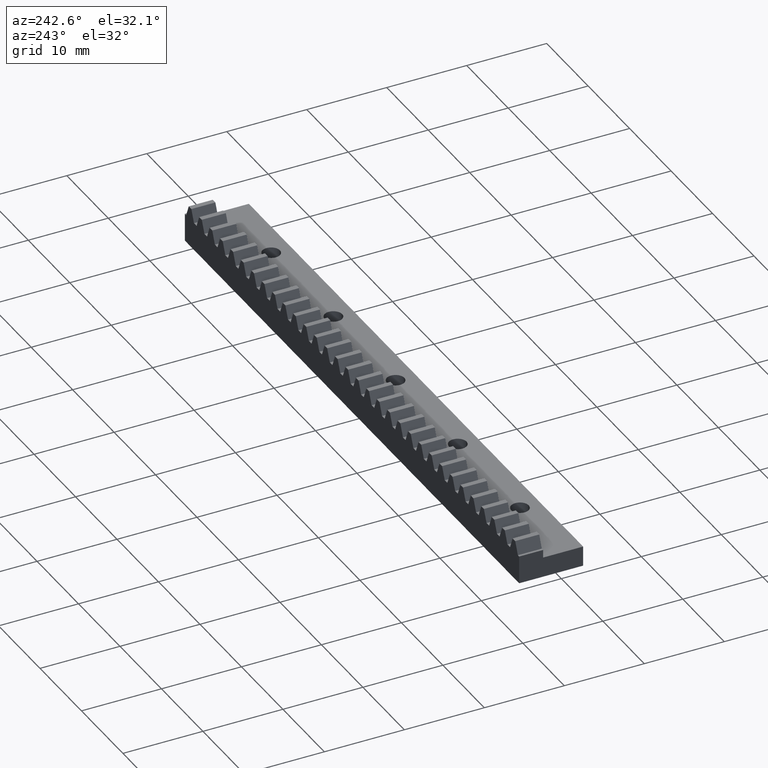
[diagram: clean part render]
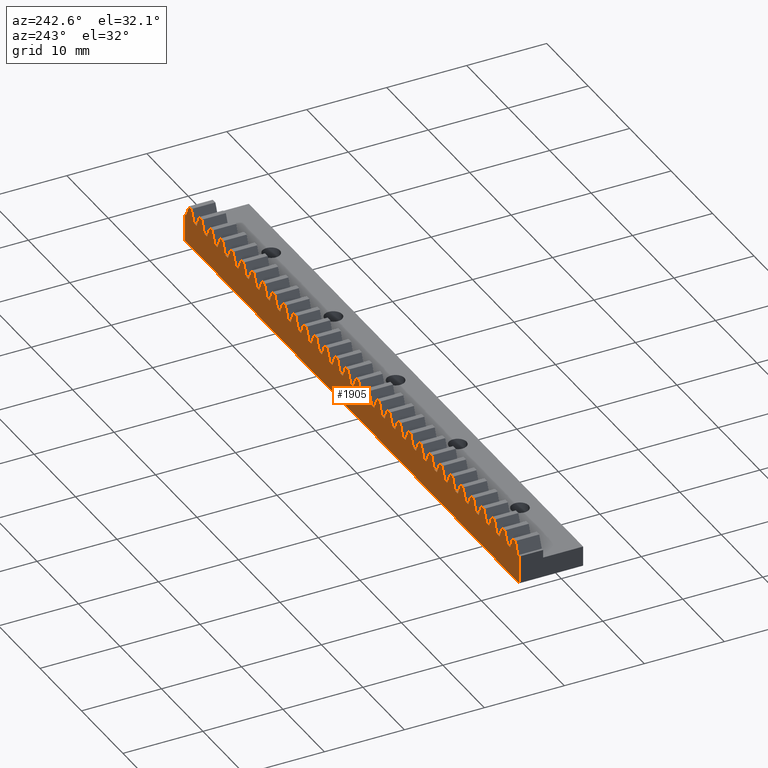
[diagram: same view with one face highlighted and labeled with its STEP entity id]
A machine part, auxiliary view. The second image highlights one B-rep face of the part: STEP entity #1905.
In plain terms, the highlighted face is a freeform B-spline surface patch.
Its self-contained STEP definition (entity closure, byte-faithful):
#974=CARTESIAN_POINT('',(-44.457968201094587,5.499999999999920,-0.249749990309030));
#975=CARTESIAN_POINT('',(44.237961643049822,5.499999999999920,-0.249749990309030));
#976=CARTESIAN_POINT('',(-44.457968201094587,5.499999999999920,5.249750124419480));
#977=CARTESIAN_POINT('',(44.237961643049822,5.499999999999920,5.249750124419480));
#978=B_SPLINE_SURFACE_WITH_KNOTS('',1,1,((#974,#976),(#975,#977)),.UNSPECIFIED.,.F.,.F.,.U.,(2,2),(2,2),(0.0,88.695929844144416),(0.0,5.499500114728511),.UNSPECIFIED.);
#979=CARTESIAN_POINT('',(-40.430000000000000,5.500000000000000,3.500000000000000));
#980=VERTEX_POINT('',#979);
#981=CARTESIAN_POINT('',(-40.430000000000000,5.500000000000000,0.0));
#982=VERTEX_POINT('',#981);
#983=CARTESIAN_POINT('',(-40.430000000000000,5.500000000000000,3.500000000000000));
#984=CARTESIAN_POINT('',(-40.430000000000000,5.500000000000000,0.0));
#985=QUASI_UNIFORM_CURVE('',1,(#983,#984),.UNSPECIFIED.,.F.,.U.);
#986=EDGE_CURVE('',#980,#982,#985,.T.);
#987=ORIENTED_EDGE('',*,*,#986,.F.);
#988=CARTESIAN_POINT('',(-40.114998000000000,5.500000000000000,3.500000000000000));
#989=VERTEX_POINT('',#988);
#990=CARTESIAN_POINT('',(-40.114998000000000,5.500000000000000,3.500000000000000));
#991=CARTESIAN_POINT('',(-40.430000000000000,5.500000000000000,3.500000000000000));
#992=QUASI_UNIFORM_CURVE('',1,(#990,#991),.UNSPECIFIED.,.F.,.U.);
#993=EDGE_CURVE('',#989,#980,#992,.T.);
#994=ORIENTED_EDGE('',*,*,#993,.F.);
#995=CARTESIAN_POINT('',(-39.484999999999999,5.500000000000000,5.0));
#996=VERTEX_POINT('',#995);
#997=CARTESIAN_POINT('',(-39.484999999999999,5.500000000000000,5.0));
#998=CARTESIAN_POINT('',(-40.114998000000000,5.500000000000000,3.500000000000000));
#999=QUASI_UNIFORM_CURVE('',1,(#997,#998),.UNSPECIFIED.,.F.,.U.);
#1000=EDGE_CURVE('',#996,#989,#999,.T.);
#1001=ORIENTED_EDGE('',*,*,#1000,.F.);
#1002=CARTESIAN_POINT('',(-38.855003000000053,5.500000000000000,5.0));
#1003=VERTEX_POINT('',#1002);
#1004=CARTESIAN_POINT('',(-38.855003000000053,5.500000000000000,5.0));
#1005=CARTESIAN_POINT('',(-39.484999999999999,5.500000000000000,5.0));
#1006=QUASI_UNIFORM_CURVE('',1,(#1004,#1005),.UNSPECIFIED.,.F.,.U.);
#1007=EDGE_CURVE('',#1003,#996,#1006,.T.);
#1008=ORIENTED_EDGE('',*,*,#1007,.F.);
#1009=CARTESIAN_POINT('',(-38.225006000000000,5.500000000000000,3.500000000000000));
#1010=VERTEX_POINT('',#1009);
#1011=CARTESIAN_POINT('',(-38.225006000000000,5.500000000000000,3.500000000000000));
#1012=CARTESIAN_POINT('',(-38.855003000000053,5.500000000000000,5.0));
#1013=QUASI_UNIFORM_CURVE('',1,(#1011,#1012),.UNSPECIFIED.,.F.,.U.);
#1014=EDGE_CURVE('',#1010,#1003,#1013,.T.);
#1015=ORIENTED_EDGE('',*,*,#1014,.F.);
#1016=CARTESIAN_POINT('',(-37.595005639991257,5.500000000000000,3.500000000000000));
#1017=VERTEX_POINT('',#1016);
#1018=CARTESIAN_POINT('',(-37.595005639991257,5.500000000000000,3.500000000000000));
#1019=CARTESIAN_POINT('',(-38.225006000000000,5.500000000000000,3.500000000000000));
#1020=QUASI_UNIFORM_CURVE('',1,(#1018,#1019),.UNSPECIFIED.,.F.,.U.);
#1021=EDGE_CURVE('',#1017,#1010,#1020,.T.);
#1022=ORIENTED_EDGE('',*,*,#1021,.F.);
#1023=CARTESIAN_POINT('',(-36.965004000000000,5.500000000000000,5.0));
#1024=VERTEX_POINT('',#1023);
#1025=CARTESIAN_POINT('',(-36.965004000000000,5.500000000000000,5.0));
#1026=CARTESIAN_POINT('',(-37.595005639991257,5.500000000000000,3.500000000000000));
#1027=QUASI_UNIFORM_CURVE('',1,(#1025,#1026),.UNSPECIFIED.,.F.,.U.);
#1028=EDGE_CURVE('',#1024,#1017,#1027,.T.);
#1029=ORIENTED_EDGE('',*,*,#1028,.F.);
#1030=CARTESIAN_POINT('',(-36.334999000000053,5.500000000000000,4.999991999999910));
#1031=VERTEX_POINT('',#1030);
#1032=CARTESIAN_POINT('',(-36.334999000000053,5.500000000000000,4.999991999999910));
#1033=CARTESIAN_POINT('',(-36.965004000000000,5.500000000000000,5.0));
#1034=QUASI_UNIFORM_CURVE('',1,(#1032,#1033),.UNSPECIFIED.,.F.,.U.);
#1035=EDGE_CURVE('',#1031,#1024,#1034,.T.);
#1036=ORIENTED_EDGE('',*,*,#1035,.F.);
#1037=CARTESIAN_POINT('',(-35.705002000000000,5.500000000000000,3.500000000000000));
#1038=VERTEX_POINT('',#1037);
#1039=CARTESIAN_POINT('',(-35.705002000000000,5.500000000000000,3.500000000000000));
#1040=CARTESIAN_POINT('',(-36.334999000000053,5.500000000000000,4.999991999999910));
#1041=QUASI_UNIFORM_CURVE('',1,(#1039,#1040),.UNSPECIFIED.,.F.,.U.);
#1042=EDGE_CURVE('',#1038,#1031,#1041,.T.);
#1043=ORIENTED_EDGE('',*,*,#1042,.F.);
#1044=CARTESIAN_POINT('',(-35.075004000000000,5.500000000000000,3.499992000000000));
#1045=VERTEX_POINT('',#1044);
#1046=CARTESIAN_POINT('',(-35.075004000000000,5.500000000000000,3.499992000000000));
#1047=CARTESIAN_POINT('',(-35.705002000000000,5.500000000000000,3.500000000000000));
#1048=QUASI_UNIFORM_CURVE('',1,(#1046,#1047),.UNSPECIFIED.,.F.,.U.);
#1049=EDGE_CURVE('',#1045,#1038,#1048,.T.);
#1050=ORIENTED_EDGE('',*,*,#1049,.F.);
#1051=CARTESIAN_POINT('',(-34.445000000000000,5.500000000000000,5.0));
#1052=VERTEX_POINT('',#1051);
#1053=CARTESIAN_POINT('',(-34.445000000000000,5.500000000000000,5.0));
#1054=CARTESIAN_POINT('',(-35.075004000000000,5.500000000000000,3.499992000000000));
#1055=QUASI_UNIFORM_CURVE('',1,(#1053,#1054),.UNSPECIFIED.,.F.,.U.);
#1056=EDGE_CURVE('',#1052,#1045,#1055,.T.);
#1057=ORIENTED_EDGE('',*,*,#1056,.F.);
#1058=CARTESIAN_POINT('',(-33.815002000000000,5.500000000000000,5.0));
#1059=VERTEX_POINT('',#1058);
#1060=CARTESIAN_POINT('',(-33.815002000000000,5.500000000000000,5.0));
#1061=CARTESIAN_POINT('',(-34.445000000000000,5.500000000000000,5.0));
#1062=QUASI_UNIFORM_CURVE('',1,(#1060,#1061),.UNSPECIFIED.,.F.,.U.);
#1063=EDGE_CURVE('',#1059,#1052,#1062,.T.);
#1064=ORIENTED_EDGE('',*,*,#1063,.F.);
#1065=CARTESIAN_POINT('',(-33.185004999999997,5.500000000000000,3.500000000000000));
#1066=VERTEX_POINT('',#1065);
#1067=CARTESIAN_POINT('',(-33.185004999999997,5.500000000000000,3.500000000000000));
#1068=CARTESIAN_POINT('',(-33.815002000000000,5.500000000000000,5.0));
#1069=QUASI_UNIFORM_CURVE('',1,(#1067,#1068),.UNSPECIFIED.,.F.,.U.);
#1070=EDGE_CURVE('',#1066,#1059,#1069,.T.);
#1071=ORIENTED_EDGE('',*,*,#1070,.F.);
#1072=CARTESIAN_POINT('',(-32.555000000000000,5.500000000000000,3.500000000000000));
#1073=VERTEX_POINT('',#1072);
#1074=CARTESIAN_POINT('',(-32.555000000000000,5.500000000000000,3.500000000000000));
#1075=CARTESIAN_POINT('',(-33.185004999999997,5.500000000000000,3.500000000000000));
#1076=QUASI_UNIFORM_CURVE('',1,(#1074,#1075),.UNSPECIFIED.,.F.,.U.);
#1077=EDGE_CURVE('',#1073,#1066,#1076,.T.);
#1078=ORIENTED_EDGE('',*,*,#1077,.F.);
#1079=CARTESIAN_POINT('',(-31.925003000000000,5.500000000000000,5.0));
#1080=VERTEX_POINT('',#1079);
#1081=CARTESIAN_POINT('',(-31.925003000000000,5.500000000000000,5.0));
#1082=CARTESIAN_POINT('',(-32.555000000000000,5.500000000000000,3.500000000000000));
#1083=QUASI_UNIFORM_CURVE('',1,(#1081,#1082),.UNSPECIFIED.,.F.,.U.);
#1084=EDGE_CURVE('',#1080,#1073,#1083,.T.);
#1085=ORIENTED_EDGE('',*,*,#1084,.F.);
#1086=CARTESIAN_POINT('',(-31.295001360001951,5.500000000000000,5.0));
#1087=VERTEX_POINT('',#1086);
#1088=CARTESIAN_POINT('',(-31.295001360001951,5.500000000000000,5.0));
#1089=CARTESIAN_POINT('',(-31.925003000000000,5.500000000000000,5.0));
#1090=QUASI_UNIFORM_CURVE('',1,(#1088,#1089),.UNSPECIFIED.,.F.,.U.);
#1091=EDGE_CURVE('',#1087,#1080,#1090,.T.);
#1092=ORIENTED_EDGE('',*,*,#1091,.F.);
#1093=CARTESIAN_POINT('',(-30.665001000000000,5.500000000000000,3.500000000000000));
#1094=VERTEX_POINT('',#1093);
#1095=CARTESIAN_POINT('',(-30.665001000000000,5.500000000000000,3.500000000000000));
#1096=CARTESIAN_POINT('',(-31.295001360001951,5.500000000000000,5.0));
#1097=QUASI_UNIFORM_CURVE('',1,(#1095,#1096),.UNSPECIFIED.,.F.,.U.);
#1098=EDGE_CURVE('',#1094,#1087,#1097,.T.);
#1099=ORIENTED_EDGE('',*,*,#1098,.F.);
#1100=CARTESIAN_POINT('',(-30.035003000000000,5.500000000000000,3.500000000000000));
#1101=VERTEX_POINT('',#1100);
#1102=CARTESIAN_POINT('',(-30.035003000000000,5.500000000000000,3.500000000000000));
#1103=CARTESIAN_POINT('',(-30.665001000000000,5.500000000000000,3.500000000000000));
#1104=QUASI_UNIFORM_CURVE('',1,(#1102,#1103),.UNSPECIFIED.,.F.,.U.);
#1105=EDGE_CURVE('',#1101,#1094,#1104,.T.);
#1106=ORIENTED_EDGE('',*,*,#1105,.F.);
#1107=CARTESIAN_POINT('',(-29.404999000000000,5.500000000000000,5.0));
#1108=VERTEX_POINT('',#1107);
#1109=CARTESIAN_POINT('',(-29.404999000000000,5.500000000000000,5.0));
#1110=CARTESIAN_POINT('',(-30.035003000000000,5.500000000000000,3.500000000000000));
#1111=QUASI_UNIFORM_CURVE('',1,(#1109,#1110),.UNSPECIFIED.,.F.,.U.);
#1112=EDGE_CURVE('',#1108,#1101,#1111,.T.);
#1113=ORIENTED_EDGE('',*,*,#1112,.F.);
#1114=CARTESIAN_POINT('',(-28.775001000000000,5.500000000000000,5.0));
#1115=VERTEX_POINT('',#1114);
#1116=CARTESIAN_POINT('',(-28.775001000000000,5.500000000000000,5.0));
#1117=CARTESIAN_POINT('',(-29.404999000000000,5.500000000000000,5.0));
#1118=QUASI_UNIFORM_CURVE('',1,(#1116,#1117),.UNSPECIFIED.,.F.,.U.);
#1119=EDGE_CURVE('',#1115,#1108,#1118,.T.);
#1120=ORIENTED_EDGE('',*,*,#1119,.F.);
#1121=CARTESIAN_POINT('',(-28.145004000000000,5.500000000000000,3.500000000000000));
#1122=VERTEX_POINT('',#1121);
#1123=CARTESIAN_POINT('',(-28.145004000000000,5.500000000000000,3.500000000000000));
#1124=CARTESIAN_POINT('',(-28.775001000000000,5.500000000000000,5.0));
#1125=QUASI_UNIFORM_CURVE('',1,(#1123,#1124),.UNSPECIFIED.,.F.,.U.);
#1126=EDGE_CURVE('',#1122,#1115,#1125,.T.);
#1127=ORIENTED_EDGE('',*,*,#1126,.F.);
#1128=CARTESIAN_POINT('',(-27.515003639991249,5.500000000000000,3.500000000000000));
#1129=VERTEX_POINT('',#1128);
#1130=CARTESIAN_POINT('',(-27.515003639991249,5.500000000000000,3.500000000000000));
#1131=CARTESIAN_POINT('',(-28.145004000000000,5.500000000000000,3.500000000000000));
#1132=QUASI_UNIFORM_CURVE('',1,(#1130,#1131),.UNSPECIFIED.,.F.,.U.);
#1133=EDGE_CURVE('',#1129,#1122,#1132,.T.);
#1134=ORIENTED_EDGE('',*,*,#1133,.F.);
#1135=CARTESIAN_POINT('',(-26.885002000000000,5.500000000000000,5.0));
#1136=VERTEX_POINT('',#1135);
#1137=CARTESIAN_POINT('',(-26.885002000000000,5.500000000000000,5.0));
#1138=CARTESIAN_POINT('',(-27.515003639991249,5.500000000000000,3.500000000000000));
#1139=QUASI_UNIFORM_CURVE('',1,(#1137,#1138),.UNSPECIFIED.,.F.,.U.);
#1140=EDGE_CURVE('',#1136,#1129,#1139,.T.);
#1141=ORIENTED_EDGE('',*,*,#1140,.F.);
#1142=CARTESIAN_POINT('',(-26.255005000000001,5.500000000000000,5.0));
#1143=VERTEX_POINT('',#1142);
#1144=CARTESIAN_POINT('',(-26.255005000000001,5.500000000000000,5.0));
#1145=CARTESIAN_POINT('',(-26.885002000000000,5.500000000000000,5.0));
#1146=QUASI_UNIFORM_CURVE('',1,(#1144,#1145),.UNSPECIFIED.,.F.,.U.);
#1147=EDGE_CURVE('',#1143,#1136,#1146,.T.);
#1148=ORIENTED_EDGE('',*,*,#1147,.F.);
#1149=CARTESIAN_POINT('',(-25.625000000000000,5.500000000000000,3.500000000000000));
#1150=VERTEX_POINT('',#1149);
#1151=CARTESIAN_POINT('',(-25.625000000000000,5.500000000000000,3.500000000000000));
#1152=CARTESIAN_POINT('',(-26.255005000000001,5.500000000000000,5.0));
#1153=QUASI_UNIFORM_CURVE('',1,(#1151,#1152),.UNSPECIFIED.,.F.,.U.);
#1154=EDGE_CURVE('',#1150,#1143,#1153,.T.);
#1155=ORIENTED_EDGE('',*,*,#1154,.F.);
#1156=CARTESIAN_POINT('',(-24.995003000000001,5.500000000000000,3.500000000000000));
#1157=VERTEX_POINT('',#1156);
#1158=CARTESIAN_POINT('',(-24.995003000000001,5.500000000000000,3.500000000000000));
#1159=CARTESIAN_POINT('',(-25.625000000000000,5.500000000000000,3.500000000000000));
#1160=QUASI_UNIFORM_CURVE('',1,(#1158,#1159),.UNSPECIFIED.,.F.,.U.);
#1161=EDGE_CURVE('',#1157,#1150,#1160,.T.);
#1162=ORIENTED_EDGE('',*,*,#1161,.F.);
#1163=CARTESIAN_POINT('',(-24.365005000000000,5.500000000000000,5.0));
#1164=VERTEX_POINT('',#1163);
#1165=CARTESIAN_POINT('',(-24.365005000000000,5.500000000000000,5.0));
#1166=CARTESIAN_POINT('',(-24.995003000000001,5.500000000000000,3.500000000000000));
#1167=QUASI_UNIFORM_CURVE('',1,(#1165,#1166),.UNSPECIFIED.,.F.,.U.);
#1168=EDGE_CURVE('',#1164,#1157,#1167,.T.);
#1169=ORIENTED_EDGE('',*,*,#1168,.F.);
#1170=CARTESIAN_POINT('',(-23.734999999999999,5.500000000000000,4.999991999999910));
#1171=VERTEX_POINT('',#1170);
#1172=CARTESIAN_POINT('',(-23.734999999999999,5.500000000000000,4.999991999999910));
#1173=CARTESIAN_POINT('',(-24.365005000000000,5.500000000000000,5.0));
#1174=QUASI_UNIFORM_CURVE('',1,(#1172,#1173),.UNSPECIFIED.,.F.,.U.);
#1175=EDGE_CURVE('',#1171,#1164,#1174,.T.);
#1176=ORIENTED_EDGE('',*,*,#1175,.F.);
#1177=CARTESIAN_POINT('',(-23.105003000000000,5.500000000000000,3.500000000000000));
#1178=VERTEX_POINT('',#1177);
#1179=CARTESIAN_POINT('',(-23.105003000000000,5.500000000000000,3.500000000000000));
#1180=CARTESIAN_POINT('',(-23.734999999999999,5.500000000000000,4.999991999999910));
#1181=QUASI_UNIFORM_CURVE('',1,(#1179,#1180),.UNSPECIFIED.,.F.,.U.);
#1182=EDGE_CURVE('',#1178,#1171,#1181,.T.);
#1183=ORIENTED_EDGE('',*,*,#1182,.F.);
#1184=CARTESIAN_POINT('',(-22.475006000000000,5.500000000000000,3.500000000000000));
#1185=VERTEX_POINT('',#1184);
#1186=CARTESIAN_POINT('',(-22.475006000000000,5.500000000000000,3.500000000000000));
#1187=CARTESIAN_POINT('',(-23.105003000000000,5.500000000000000,3.500000000000000));
#1188=QUASI_UNIFORM_CURVE('',1,(#1186,#1187),.UNSPECIFIED.,.F.,.U.);
#1189=EDGE_CURVE('',#1185,#1178,#1188,.T.);
#1190=ORIENTED_EDGE('',*,*,#1189,.F.);
#1191=CARTESIAN_POINT('',(-21.845005639998050,5.500000000000000,5.0));
#1192=VERTEX_POINT('',#1191);
#1193=CARTESIAN_POINT('',(-21.845005639998050,5.500000000000000,5.0));
#1194=CARTESIAN_POINT('',(-22.475006000000000,5.500000000000000,3.500000000000000));
#1195=QUASI_UNIFORM_CURVE('',1,(#1193,#1194),.UNSPECIFIED.,.F.,.U.);
#1196=EDGE_CURVE('',#1192,#1185,#1195,.T.);
#1197=ORIENTED_EDGE('',*,*,#1196,.F.);
#1198=CARTESIAN_POINT('',(-21.215004000000000,5.500000000000000,5.0));
#1199=VERTEX_POINT('',#1198);
#1200=CARTESIAN_POINT('',(-21.215004000000000,5.500000000000000,5.0));
#1201=CARTESIAN_POINT('',(-21.845005639998050,5.500000000000000,5.0));
#1202=QUASI_UNIFORM_CURVE('',1,(#1200,#1201),.UNSPECIFIED.,.F.,.U.);
#1203=EDGE_CURVE('',#1199,#1192,#1202,.T.);
#1204=ORIENTED_EDGE('',*,*,#1203,.F.);
#1205=CARTESIAN_POINT('',(-20.584999000000000,5.500000000000000,3.500000000000000));
#1206=VERTEX_POINT('',#1205);
#1207=CARTESIAN_POINT('',(-20.584999000000000,5.500000000000000,3.500000000000000));
#1208=CARTESIAN_POINT('',(-21.215004000000000,5.500000000000000,5.0));
#1209=QUASI_UNIFORM_CURVE('',1,(#1207,#1208),.UNSPECIFIED.,.F.,.U.);
#1210=EDGE_CURVE('',#1206,#1199,#1209,.T.);
#1211=ORIENTED_EDGE('',*,*,#1210,.F.);
#1212=CARTESIAN_POINT('',(-19.955002000000000,5.500000000000000,3.500000000000000));
#1213=VERTEX_POINT('',#1212);
#1214=CARTESIAN_POINT('',(-19.955002000000000,5.500000000000000,3.500000000000000));
#1215=CARTESIAN_POINT('',(-20.584999000000000,5.500000000000000,3.500000000000000));
#1216=QUASI_UNIFORM_CURVE('',1,(#1214,#1215),.UNSPECIFIED.,.F.,.U.);
#1217=EDGE_CURVE('',#1213,#1206,#1216,.T.);
#1218=ORIENTED_EDGE('',*,*,#1217,.F.);
#1219=CARTESIAN_POINT('',(-19.325004000000000,5.500000000000000,5.0));
#1220=VERTEX_POINT('',#1219);
#1221=CARTESIAN_POINT('',(-19.325004000000000,5.500000000000000,5.0));
#1222=CARTESIAN_POINT('',(-19.955002000000000,5.500000000000000,3.500000000000000));
#1223=QUASI_UNIFORM_CURVE('',1,(#1221,#1222),.UNSPECIFIED.,.F.,.U.);
#1224=EDGE_CURVE('',#1220,#1213,#1223,.T.);
#1225=ORIENTED_EDGE('',*,*,#1224,.F.);
#1226=CARTESIAN_POINT('',(-18.695000000000000,5.500000000000000,4.999991999999910));
#1227=VERTEX_POINT('',#1226);
#1228=CARTESIAN_POINT('',(-18.695000000000000,5.500000000000000,4.999991999999910));
#1229=CARTESIAN_POINT('',(-19.325004000000000,5.500000000000000,5.0));
#1230=QUASI_UNIFORM_CURVE('',1,(#1228,#1229),.UNSPECIFIED.,.F.,.U.);
#1231=EDGE_CURVE('',#1227,#1220,#1230,.T.);
#1232=ORIENTED_EDGE('',*,*,#1231,.F.);
#1233=CARTESIAN_POINT('',(-18.065002000000000,5.500000000000000,3.500000000000000));
#1234=VERTEX_POINT('',#1233);
#1235=CARTESIAN_POINT('',(-18.065002000000000,5.500000000000000,3.500000000000000));
#1236=CARTESIAN_POINT('',(-18.695000000000000,5.500000000000000,4.999991999999910));
#1237=QUASI_UNIFORM_CURVE('',1,(#1235,#1236),.UNSPECIFIED.,.F.,.U.);
#1238=EDGE_CURVE('',#1234,#1227,#1237,.T.);
#1239=ORIENTED_EDGE('',*,*,#1238,.F.);
#1240=CARTESIAN_POINT('',(-17.435005000000000,5.500000000000000,3.499992000000000));
#1241=VERTEX_POINT('',#1240);
#1242=CARTESIAN_POINT('',(-17.435005000000000,5.500000000000000,3.499992000000000));
#1243=CARTESIAN_POINT('',(-18.065002000000000,5.500000000000000,3.500000000000000));
#1244=QUASI_UNIFORM_CURVE('',1,(#1242,#1243),.UNSPECIFIED.,.F.,.U.);
#1245=EDGE_CURVE('',#1241,#1234,#1244,.T.);
#1246=ORIENTED_EDGE('',*,*,#1245,.F.);
#1247=CARTESIAN_POINT('',(-16.805000000000000,5.500000000000000,5.0));
#1248=VERTEX_POINT('',#1247);
#1249=CARTESIAN_POINT('',(-16.805000000000000,5.500000000000000,5.0));
#1250=CARTESIAN_POINT('',(-17.435005000000000,5.500000000000000,3.499992000000000));
#1251=QUASI_UNIFORM_CURVE('',1,(#1249,#1250),.UNSPECIFIED.,.F.,.U.);
#1252=EDGE_CURVE('',#1248,#1241,#1251,.T.);
#1253=ORIENTED_EDGE('',*,*,#1252,.F.);
#1254=CARTESIAN_POINT('',(-16.175003000000000,5.500000000000000,5.0));
#1255=VERTEX_POINT('',#1254);
#1256=CARTESIAN_POINT('',(-16.175003000000000,5.500000000000000,5.0));
#1257=CARTESIAN_POINT('',(-16.805000000000000,5.500000000000000,5.0));
#1258=QUASI_UNIFORM_CURVE('',1,(#1256,#1257),.UNSPECIFIED.,.F.,.U.);
#1259=EDGE_CURVE('',#1255,#1248,#1258,.T.);
#1260=ORIENTED_EDGE('',*,*,#1259,.F.);
#1261=CARTESIAN_POINT('',(-15.545006000000001,5.500000000000000,3.500000000000000));
#1262=VERTEX_POINT('',#1261);
#1263=CARTESIAN_POINT('',(-15.545006000000001,5.500000000000000,3.500000000000000));
#1264=CARTESIAN_POINT('',(-16.175003000000000,5.500000000000000,5.0));
#1265=QUASI_UNIFORM_CURVE('',1,(#1263,#1264),.UNSPECIFIED.,.F.,.U.);
#1266=EDGE_CURVE('',#1262,#1255,#1265,.T.);
#1267=ORIENTED_EDGE('',*,*,#1266,.F.);
#1268=CARTESIAN_POINT('',(-14.915001000000000,5.500000000000000,3.500000000000000));
#1269=VERTEX_POINT('',#1268);
#1270=CARTESIAN_POINT('',(-14.915001000000000,5.500000000000000,3.500000000000000));
#1271=CARTESIAN_POINT('',(-15.545006000000001,5.500000000000000,3.500000000000000));
#1272=QUASI_UNIFORM_CURVE('',1,(#1270,#1271),.UNSPECIFIED.,.F.,.U.);
#1273=EDGE_CURVE('',#1269,#1262,#1272,.T.);
#1274=ORIENTED_EDGE('',*,*,#1273,.F.);
#1275=CARTESIAN_POINT('',(-14.285003000000000,5.500000000000000,5.0));
#1276=VERTEX_POINT('',#1275);
#1277=CARTESIAN_POINT('',(-14.285003000000000,5.500000000000000,5.0));
#1278=CARTESIAN_POINT('',(-14.915001000000000,5.500000000000000,3.500000000000000));
#1279=QUASI_UNIFORM_CURVE('',1,(#1277,#1278),.UNSPECIFIED.,.F.,.U.);
#1280=EDGE_CURVE('',#1276,#1269,#1279,.T.);
#1281=ORIENTED_EDGE('',*,*,#1280,.F.);
#1282=CARTESIAN_POINT('',(-13.654999000000000,5.500000000000000,4.999991999999910));
#1283=VERTEX_POINT('',#1282);
#1284=CARTESIAN_POINT('',(-13.654999000000000,5.500000000000000,4.999991999999910));
#1285=CARTESIAN_POINT('',(-14.285003000000000,5.500000000000000,5.0));
#1286=QUASI_UNIFORM_CURVE('',1,(#1284,#1285),.UNSPECIFIED.,.F.,.U.);
#1287=EDGE_CURVE('',#1283,#1276,#1286,.T.);
#1288=ORIENTED_EDGE('',*,*,#1287,.F.);
#1289=CARTESIAN_POINT('',(-13.025001000000000,5.500000000000000,3.500000000000000));
#1290=VERTEX_POINT('',#1289);
#1291=CARTESIAN_POINT('',(-13.025001000000000,5.500000000000000,3.500000000000000));
#1292=CARTESIAN_POINT('',(-13.654999000000000,5.500000000000000,4.999991999999910));
#1293=QUASI_UNIFORM_CURVE('',1,(#1291,#1292),.UNSPECIFIED.,.F.,.U.);
#1294=EDGE_CURVE('',#1290,#1283,#1293,.T.);
#1295=ORIENTED_EDGE('',*,*,#1294,.F.);
#1296=CARTESIAN_POINT('',(-12.394996000000100,5.500000000000000,3.500000000000000));
#1297=VERTEX_POINT('',#1296);
#1298=CARTESIAN_POINT('',(-12.394996000000100,5.500000000000000,3.500000000000000));
#1299=CARTESIAN_POINT('',(-13.025001000000000,5.500000000000000,3.500000000000000));
#1300=QUASI_UNIFORM_CURVE('',1,(#1298,#1299),.UNSPECIFIED.,.F.,.U.);
#1301=EDGE_CURVE('',#1297,#1290,#1300,.T.);
#1302=ORIENTED_EDGE('',*,*,#1301,.F.);
#1303=CARTESIAN_POINT('',(-11.764999000000000,5.500000000000000,5.0));
#1304=VERTEX_POINT('',#1303);
#1305=CARTESIAN_POINT('',(-11.764999000000000,5.500000000000000,5.0));
#1306=CARTESIAN_POINT('',(-12.394996000000100,5.500000000000000,3.500000000000000));
#1307=QUASI_UNIFORM_CURVE('',1,(#1305,#1306),.UNSPECIFIED.,.F.,.U.);
#1308=EDGE_CURVE('',#1304,#1297,#1307,.T.);
#1309=ORIENTED_EDGE('',*,*,#1308,.F.);
#1310=CARTESIAN_POINT('',(-11.135002000000100,5.500000000000000,5.0));
#1311=VERTEX_POINT('',#1310);
#1312=CARTESIAN_POINT('',(-11.135002000000100,5.500000000000000,5.0));
#1313=CARTESIAN_POINT('',(-11.764999000000000,5.500000000000000,5.0));
#1314=QUASI_UNIFORM_CURVE('',1,(#1312,#1313),.UNSPECIFIED.,.F.,.U.);
#1315=EDGE_CURVE('',#1311,#1304,#1314,.T.);
#1316=ORIENTED_EDGE('',*,*,#1315,.F.);
#1317=CARTESIAN_POINT('',(-10.505005000000001,5.500000000000000,3.500000000000000));
#1318=VERTEX_POINT('',#1317);
#1319=CARTESIAN_POINT('',(-10.505005000000001,5.500000000000000,3.500000000000000));
#1320=CARTESIAN_POINT('',(-11.135002000000100,5.500000000000000,5.0));
#1321=QUASI_UNIFORM_CURVE('',1,(#1319,#1320),.UNSPECIFIED.,.F.,.U.);
#1322=EDGE_CURVE('',#1318,#1311,#1321,.T.);
#1323=ORIENTED_EDGE('',*,*,#1322,.F.);
#1324=CARTESIAN_POINT('',(-9.875003639996701,5.500000000000000,3.500000000000000));
#1325=VERTEX_POINT('',#1324);
#1326=CARTESIAN_POINT('',(-9.875003639996701,5.500000000000000,3.500000000000000));
#1327=CARTESIAN_POINT('',(-10.505005000000001,5.500000000000000,3.500000000000000));
#1328=QUASI_UNIFORM_CURVE('',1,(#1326,#1327),.UNSPECIFIED.,.F.,.U.);
#1329=EDGE_CURVE('',#1325,#1318,#1328,.T.);
#1330=ORIENTED_EDGE('',*,*,#1329,.F.);
#1331=CARTESIAN_POINT('',(-9.245003000000001,5.500000000000000,5.0));
#1332=VERTEX_POINT('',#1331);
#1333=CARTESIAN_POINT('',(-9.245003000000001,5.500000000000000,5.0));
#1334=CARTESIAN_POINT('',(-9.875003639996701,5.500000000000000,3.500000000000000));
#1335=QUASI_UNIFORM_CURVE('',1,(#1333,#1334),.UNSPECIFIED.,.F.,.U.);
#1336=EDGE_CURVE('',#1332,#1325,#1335,.T.);
#1337=ORIENTED_EDGE('',*,*,#1336,.F.);
#1338=CARTESIAN_POINT('',(-8.615005000000110,5.500000000000000,4.999991999999910));
#1339=VERTEX_POINT('',#1338);
#1340=CARTESIAN_POINT('',(-8.615005000000110,5.500000000000000,4.999991999999910));
#1341=CARTESIAN_POINT('',(-9.245003000000001,5.500000000000000,5.0));
#1342=QUASI_UNIFORM_CURVE('',1,(#1340,#1341),.UNSPECIFIED.,.F.,.U.);
#1343=EDGE_CURVE('',#1339,#1332,#1342,.T.);
#1344=ORIENTED_EDGE('',*,*,#1343,.F.);
#1345=CARTESIAN_POINT('',(-7.985000000000001,5.500000000000000,3.500000000000000));
#1346=VERTEX_POINT('',#1345);
#1347=CARTESIAN_POINT('',(-7.985000000000001,5.500000000000000,3.500000000000000));
#1348=CARTESIAN_POINT('',(-8.615005000000110,5.500000000000000,4.999991999999910));
#1349=QUASI_UNIFORM_CURVE('',1,(#1347,#1348),.UNSPECIFIED.,.F.,.U.);
#1350=EDGE_CURVE('',#1346,#1339,#1349,.T.);
#1351=ORIENTED_EDGE('',*,*,#1350,.F.);
#1352=CARTESIAN_POINT('',(-7.355003000000110,5.500000000000000,3.499992000000000));
#1353=VERTEX_POINT('',#1352);
#1354=CARTESIAN_POINT('',(-7.355003000000110,5.500000000000000,3.499992000000000));
#1355=CARTESIAN_POINT('',(-7.985000000000001,5.500000000000000,3.500000000000000));
#1356=QUASI_UNIFORM_CURVE('',1,(#1354,#1355),.UNSPECIFIED.,.F.,.U.);
#1357=EDGE_CURVE('',#1353,#1346,#1356,.T.);
#1358=ORIENTED_EDGE('',*,*,#1357,.F.);
#1359=CARTESIAN_POINT('',(-6.725006000000111,5.500000000000000,5.0));
#1360=VERTEX_POINT('',#1359);
#1361=CARTESIAN_POINT('',(-6.725006000000111,5.500000000000000,5.0));
#1362=CARTESIAN_POINT('',(-7.355003000000110,5.500000000000000,3.499992000000000));
#1363=QUASI_UNIFORM_CURVE('',1,(#1361,#1362),.UNSPECIFIED.,.F.,.U.);
#1364=EDGE_CURVE('',#1360,#1353,#1363,.T.);
#1365=ORIENTED_EDGE('',*,*,#1364,.F.);
#1366=CARTESIAN_POINT('',(-6.095001000000000,5.500000000000000,5.0));
#1367=VERTEX_POINT('',#1366);
#1368=CARTESIAN_POINT('',(-6.095001000000000,5.500000000000000,5.0));
#1369=CARTESIAN_POINT('',(-6.725006000000111,5.500000000000000,5.0));
#1370=QUASI_UNIFORM_CURVE('',1,(#1368,#1369),.UNSPECIFIED.,.F.,.U.);
#1371=EDGE_CURVE('',#1367,#1360,#1370,.T.);
#1372=ORIENTED_EDGE('',*,*,#1371,.F.);
#1373=CARTESIAN_POINT('',(-5.465004000000110,5.500000000000000,3.500000000000000));
#1374=VERTEX_POINT('',#1373);
#1375=CARTESIAN_POINT('',(-5.465004000000110,5.500000000000000,3.500000000000000));
#1376=CARTESIAN_POINT('',(-6.095001000000000,5.500000000000000,5.0));
#1377=QUASI_UNIFORM_CURVE('',1,(#1375,#1376),.UNSPECIFIED.,.F.,.U.);
#1378=EDGE_CURVE('',#1374,#1367,#1377,.T.);
#1379=ORIENTED_EDGE('',*,*,#1378,.F.);
#1380=CARTESIAN_POINT('',(-4.834999000000001,5.500000000000000,3.500000000000000));
#1381=VERTEX_POINT('',#1380);
#1382=CARTESIAN_POINT('',(-4.834999000000001,5.500000000000000,3.500000000000000));
#1383=CARTESIAN_POINT('',(-5.465004000000110,5.500000000000000,3.500000000000000));
#1384=QUASI_UNIFORM_CURVE('',1,(#1382,#1383),.UNSPECIFIED.,.F.,.U.);
#1385=EDGE_CURVE('',#1381,#1374,#1384,.T.);
#1386=ORIENTED_EDGE('',*,*,#1385,.F.);
#1387=CARTESIAN_POINT('',(-4.205002000000105,5.500000000000000,5.0));
#1388=VERTEX_POINT('',#1387);
#1389=CARTESIAN_POINT('',(-4.205002000000105,5.500000000000000,5.0));
#1390=CARTESIAN_POINT('',(-4.834999000000001,5.500000000000000,3.500000000000000));
#1391=QUASI_UNIFORM_CURVE('',1,(#1389,#1390),.UNSPECIFIED.,.F.,.U.);
#1392=EDGE_CURVE('',#1388,#1381,#1391,.T.);
#1393=ORIENTED_EDGE('',*,*,#1392,.F.);
#1394=CARTESIAN_POINT('',(-3.575004000000000,5.500000000000000,4.999991999999910));
#1395=VERTEX_POINT('',#1394);
#1396=CARTESIAN_POINT('',(-3.575004000000000,5.500000000000000,4.999991999999910));
#1397=CARTESIAN_POINT('',(-4.205002000000105,5.500000000000000,5.0));
#1398=QUASI_UNIFORM_CURVE('',1,(#1396,#1397),.UNSPECIFIED.,.F.,.U.);
#1399=EDGE_CURVE('',#1395,#1388,#1398,.T.);
#1400=ORIENTED_EDGE('',*,*,#1399,.F.);
#1401=CARTESIAN_POINT('',(-2.945000000000000,5.500000000000000,3.500000000000000));
#1402=VERTEX_POINT('',#1401);
#1403=CARTESIAN_POINT('',(-2.945000000000000,5.500000000000000,3.500000000000000));
#1404=CARTESIAN_POINT('',(-3.575004000000000,5.500000000000000,4.999991999999910));
#1405=QUASI_UNIFORM_CURVE('',1,(#1403,#1404),.UNSPECIFIED.,.F.,.U.);
#1406=EDGE_CURVE('',#1402,#1395,#1405,.T.);
#1407=ORIENTED_EDGE('',*,*,#1406,.F.);
#1408=CARTESIAN_POINT('',(-2.315002000000105,5.500000000000000,3.500000000000000));
#1409=VERTEX_POINT('',#1408);
#1410=CARTESIAN_POINT('',(-2.315002000000105,5.500000000000000,3.500000000000000));
#1411=CARTESIAN_POINT('',(-2.945000000000000,5.500000000000000,3.500000000000000));
#1412=QUASI_UNIFORM_CURVE('',1,(#1410,#1411),.UNSPECIFIED.,.F.,.U.);
#1413=EDGE_CURVE('',#1409,#1402,#1412,.T.);
#1414=ORIENTED_EDGE('',*,*,#1413,.F.);
#1415=CARTESIAN_POINT('',(-1.685005000000205,5.500000000000000,5.0));
#1416=VERTEX_POINT('',#1415);
#1417=CARTESIAN_POINT('',(-1.685005000000205,5.500000000000000,5.0));
#1418=CARTESIAN_POINT('',(-2.315002000000105,5.500000000000000,3.500000000000000));
#1419=QUASI_UNIFORM_CURVE('',1,(#1417,#1418),.UNSPECIFIED.,.F.,.U.);
#1420=EDGE_CURVE('',#1416,#1409,#1419,.T.);
#1421=ORIENTED_EDGE('',*,*,#1420,.F.);
#1422=CARTESIAN_POINT('',(-1.055000000000106,5.500000000000000,4.999991999999910));
#1423=VERTEX_POINT('',#1422);
#1424=CARTESIAN_POINT('',(-1.055000000000106,5.500000000000000,4.999991999999910));
#1425=CARTESIAN_POINT('',(-1.685005000000205,5.500000000000000,5.0));
#1426=QUASI_UNIFORM_CURVE('',1,(#1424,#1425),.UNSPECIFIED.,.F.,.U.);
#1427=EDGE_CURVE('',#1423,#1416,#1426,.T.);
#1428=ORIENTED_EDGE('',*,*,#1427,.F.);
#1429=CARTESIAN_POINT('',(-0.425003000000000,5.500000000000000,3.500000000000000));
#1430=VERTEX_POINT('',#1429);
#1431=CARTESIAN_POINT('',(-0.425003000000000,5.500000000000000,3.500000000000000));
#1432=CARTESIAN_POINT('',(-1.055000000000106,5.500000000000000,4.999991999999910));
#1433=QUASI_UNIFORM_CURVE('',1,(#1431,#1432),.UNSPECIFIED.,.F.,.U.);
#1434=EDGE_CURVE('',#1430,#1423,#1433,.T.);
#1435=ORIENTED_EDGE('',*,*,#1434,.F.);
#1436=CARTESIAN_POINT('',(0.204993999999900,5.500000000000000,3.499992000000000));
#1437=VERTEX_POINT('',#1436);
#1438=CARTESIAN_POINT('',(0.204993999999900,5.500000000000000,3.499992000000000));
#1439=CARTESIAN_POINT('',(-0.425003000000000,5.500000000000000,3.500000000000000));
#1440=QUASI_UNIFORM_CURVE('',1,(#1438,#1439),.UNSPECIFIED.,.F.,.U.);
#1441=EDGE_CURVE('',#1437,#1430,#1440,.T.);
#1442=ORIENTED_EDGE('',*,*,#1441,.F.);
#1443=CARTESIAN_POINT('',(0.834998999999897,5.500000000000000,5.0));
#1444=VERTEX_POINT('',#1443);
#1445=CARTESIAN_POINT('',(0.834998999999897,5.500000000000000,5.0));
#1446=CARTESIAN_POINT('',(0.204993999999900,5.500000000000000,3.499992000000000));
#1447=QUASI_UNIFORM_CURVE('',1,(#1445,#1446),.UNSPECIFIED.,.F.,.U.);
#1448=EDGE_CURVE('',#1444,#1437,#1447,.T.);
#1449=ORIENTED_EDGE('',*,*,#1448,.F.);
#1450=CARTESIAN_POINT('',(1.464997000000000,5.500000000000000,4.999991999999910));
#1451=VERTEX_POINT('',#1450);
#1452=CARTESIAN_POINT('',(1.464997000000000,5.500000000000000,4.999991999999910));
#1453=CARTESIAN_POINT('',(0.834998999999897,5.500000000000000,5.0));
#1454=QUASI_UNIFORM_CURVE('',1,(#1452,#1453),.UNSPECIFIED.,.F.,.U.);
#1455=EDGE_CURVE('',#1451,#1444,#1454,.T.);
#1456=ORIENTED_EDGE('',*,*,#1455,.F.);
#1457=CARTESIAN_POINT('',(2.095000999999895,5.500000000000000,3.500000000000000));
#1458=VERTEX_POINT('',#1457);
#1459=CARTESIAN_POINT('',(2.095000999999895,5.500000000000000,3.500000000000000));
#1460=CARTESIAN_POINT('',(1.464997000000000,5.500000000000000,4.999991999999910));
#1461=QUASI_UNIFORM_CURVE('',1,(#1459,#1460),.UNSPECIFIED.,.F.,.U.);
#1462=EDGE_CURVE('',#1458,#1451,#1461,.T.);
#1463=ORIENTED_EDGE('',*,*,#1462,.F.);
#1464=CARTESIAN_POINT('',(2.724999000000000,5.500000000000000,3.500000000000000));
#1465=VERTEX_POINT('',#1464);
#1466=CARTESIAN_POINT('',(2.724999000000000,5.500000000000000,3.500000000000000));
#1467=CARTESIAN_POINT('',(2.095000999999895,5.500000000000000,3.500000000000000));
#1468=QUASI_UNIFORM_CURVE('',1,(#1466,#1467),.UNSPECIFIED.,.F.,.U.);
#1469=EDGE_CURVE('',#1465,#1458,#1468,.T.);
#1470=ORIENTED_EDGE('',*,*,#1469,.F.);
#1471=CARTESIAN_POINT('',(3.355000639991190,5.500000000000000,5.0));
#1472=VERTEX_POINT('',#1471);
#1473=CARTESIAN_POINT('',(3.355000639991190,5.500000000000000,5.0));
#1474=CARTESIAN_POINT('',(2.724999000000000,5.500000000000000,3.500000000000000));
#1475=QUASI_UNIFORM_CURVE('',1,(#1473,#1474),.UNSPECIFIED.,.F.,.U.);
#1476=EDGE_CURVE('',#1472,#1465,#1475,.T.);
#1477=ORIENTED_EDGE('',*,*,#1476,.F.);
#1478=CARTESIAN_POINT('',(3.984989639955165,5.500000000000000,5.0));
#1479=VERTEX_POINT('',#1478);
#1480=CARTESIAN_POINT('',(3.984989639955165,5.500000000000000,5.0));
#1481=CARTESIAN_POINT('',(3.355000639991190,5.500000000000000,5.0));
#1482=QUASI_UNIFORM_CURVE('',1,(#1480,#1481),.UNSPECIFIED.,.F.,.U.);
#1483=EDGE_CURVE('',#1479,#1472,#1482,.T.);
#1484=ORIENTED_EDGE('',*,*,#1483,.F.);
#1485=CARTESIAN_POINT('',(4.614997999999901,5.500000000000000,3.500000000000000));
#1486=VERTEX_POINT('',#1485);
#1487=CARTESIAN_POINT('',(4.614997999999901,5.500000000000000,3.500000000000000));
#1488=CARTESIAN_POINT('',(3.984989639955165,5.500000000000000,5.0));
#1489=QUASI_UNIFORM_CURVE('',1,(#1487,#1488),.UNSPECIFIED.,.F.,.U.);
#1490=EDGE_CURVE('',#1486,#1479,#1489,.T.);
#1491=ORIENTED_EDGE('',*,*,#1490,.F.);
#1492=CARTESIAN_POINT('',(5.244994999999790,5.500000000000000,3.500000000000000));
#1493=VERTEX_POINT('',#1492);
#1494=CARTESIAN_POINT('',(5.244994999999790,5.500000000000000,3.500000000000000));
#1495=CARTESIAN_POINT('',(4.614997999999901,5.500000000000000,3.500000000000000));
#1496=QUASI_UNIFORM_CURVE('',1,(#1494,#1495),.UNSPECIFIED.,.F.,.U.);
#1497=EDGE_CURVE('',#1493,#1486,#1496,.T.);
#1498=ORIENTED_EDGE('',*,*,#1497,.F.);
#1499=CARTESIAN_POINT('',(5.874996360007279,5.500000000000000,5.0));
#1500=VERTEX_POINT('',#1499);
#1501=CARTESIAN_POINT('',(5.874996360007279,5.500000000000000,5.0));
#1502=CARTESIAN_POINT('',(5.244994999999790,5.500000000000000,3.500000000000000));
#1503=QUASI_UNIFORM_CURVE('',1,(#1501,#1502),.UNSPECIFIED.,.F.,.U.);
#1504=EDGE_CURVE('',#1500,#1493,#1503,.T.);
#1505=ORIENTED_EDGE('',*,*,#1504,.F.);
#1506=CARTESIAN_POINT('',(6.504997000000000,5.500000000000000,5.0));
#1507=VERTEX_POINT('',#1506);
#1508=CARTESIAN_POINT('',(6.504997000000000,5.500000000000000,5.0));
#1509=CARTESIAN_POINT('',(5.874996360007279,5.500000000000000,5.0));
#1510=QUASI_UNIFORM_CURVE('',1,(#1508,#1509),.UNSPECIFIED.,.F.,.U.);
#1511=EDGE_CURVE('',#1507,#1500,#1510,.T.);
#1512=ORIENTED_EDGE('',*,*,#1511,.F.);
#1513=CARTESIAN_POINT('',(7.134994999999890,5.500000000000000,3.500000000000000));
#1514=VERTEX_POINT('',#1513);
#1515=CARTESIAN_POINT('',(7.134994999999890,5.500000000000000,3.500000000000000));
#1516=CARTESIAN_POINT('',(6.504997000000000,5.500000000000000,5.0));
#1517=QUASI_UNIFORM_CURVE('',1,(#1515,#1516),.UNSPECIFIED.,.F.,.U.);
#1518=EDGE_CURVE('',#1514,#1507,#1517,.T.);
#1519=ORIENTED_EDGE('',*,*,#1518,.F.);
#1520=CARTESIAN_POINT('',(7.765000000000001,5.500000000000000,3.500007999999895));
#1521=VERTEX_POINT('',#1520);
#1522=CARTESIAN_POINT('',(7.765000000000001,5.500000000000000,3.500007999999895));
#1523=CARTESIAN_POINT('',(7.134994999999890,5.500000000000000,3.500000000000000));
#1524=QUASI_UNIFORM_CURVE('',1,(#1522,#1523),.UNSPECIFIED.,.F.,.U.);
#1525=EDGE_CURVE('',#1521,#1514,#1524,.T.);
#1526=ORIENTED_EDGE('',*,*,#1525,.F.);
#1527=CARTESIAN_POINT('',(8.394996999999890,5.500000000000000,5.0));
#1528=VERTEX_POINT('',#1527);
#1529=CARTESIAN_POINT('',(8.394996999999890,5.500000000000000,5.0));
#1530=CARTESIAN_POINT('',(7.765000000000001,5.500000000000000,3.500007999999895));
#1531=QUASI_UNIFORM_CURVE('',1,(#1529,#1530),.UNSPECIFIED.,.F.,.U.);
#1532=EDGE_CURVE('',#1528,#1521,#1531,.T.);
#1533=ORIENTED_EDGE('',*,*,#1532,.F.);
#1534=CARTESIAN_POINT('',(9.024994000000000,5.500000000000000,5.0));
#1535=VERTEX_POINT('',#1534);
#1536=CARTESIAN_POINT('',(9.024994000000000,5.500000000000000,5.0));
#1537=CARTESIAN_POINT('',(8.394996999999890,5.500000000000000,5.0));
#1538=QUASI_UNIFORM_CURVE('',1,(#1536,#1537),.UNSPECIFIED.,.F.,.U.);
#1539=EDGE_CURVE('',#1535,#1528,#1538,.T.);
#1540=ORIENTED_EDGE('',*,*,#1539,.F.);
#1541=CARTESIAN_POINT('',(9.654998999999890,5.500000000000000,3.500000000000000));
#1542=VERTEX_POINT('',#1541);
#1543=CARTESIAN_POINT('',(9.654998999999890,5.500000000000000,3.500000000000000));
#1544=CARTESIAN_POINT('',(9.024994000000000,5.500000000000000,5.0));
#1545=QUASI_UNIFORM_CURVE('',1,(#1543,#1544),.UNSPECIFIED.,.F.,.U.);
#1546=EDGE_CURVE('',#1542,#1535,#1545,.T.);
#1547=ORIENTED_EDGE('',*,*,#1546,.F.);
#1548=CARTESIAN_POINT('',(10.284995999999900,5.500000000000000,3.499992000000000));
#1549=VERTEX_POINT('',#1548);
#1550=CARTESIAN_POINT('',(10.284995999999900,5.500000000000000,3.499992000000000));
#1551=CARTESIAN_POINT('',(9.654998999999890,5.500000000000000,3.500000000000000));
#1552=QUASI_UNIFORM_CURVE('',1,(#1550,#1551),.UNSPECIFIED.,.F.,.U.);
#1553=EDGE_CURVE('',#1549,#1542,#1552,.T.);
#1554=ORIENTED_EDGE('',*,*,#1553,.F.);
#1555=CARTESIAN_POINT('',(10.915001000000000,5.500000000000000,5.0));
#1556=VERTEX_POINT('',#1555);
#1557=CARTESIAN_POINT('',(10.915001000000000,5.500000000000000,5.0));
#1558=CARTESIAN_POINT('',(10.284995999999900,5.500000000000000,3.499992000000000));
#1559=QUASI_UNIFORM_CURVE('',1,(#1557,#1558),.UNSPECIFIED.,.F.,.U.);
#1560=EDGE_CURVE('',#1556,#1549,#1559,.T.);
#1561=ORIENTED_EDGE('',*,*,#1560,.F.);
#1562=CARTESIAN_POINT('',(11.544997999999900,5.500000000000000,5.0));
#1563=VERTEX_POINT('',#1562);
#1564=CARTESIAN_POINT('',(11.544997999999900,5.500000000000000,5.0));
#1565=CARTESIAN_POINT('',(10.915001000000000,5.500000000000000,5.0));
#1566=QUASI_UNIFORM_CURVE('',1,(#1564,#1565),.UNSPECIFIED.,.F.,.U.);
#1567=EDGE_CURVE('',#1563,#1556,#1566,.T.);
#1568=ORIENTED_EDGE('',*,*,#1567,.F.);
#1569=CARTESIAN_POINT('',(12.174996000000000,5.500000000000000,3.500000000000000));
#1570=VERTEX_POINT('',#1569);
#1571=CARTESIAN_POINT('',(12.174996000000000,5.500000000000000,3.500000000000000));
#1572=CARTESIAN_POINT('',(11.544997999999900,5.500000000000000,5.0));
#1573=QUASI_UNIFORM_CURVE('',1,(#1571,#1572),.UNSPECIFIED.,.F.,.U.);
#1574=EDGE_CURVE('',#1570,#1563,#1573,.T.);
#1575=ORIENTED_EDGE('',*,*,#1574,.F.);
#1576=CARTESIAN_POINT('',(12.805000000000000,5.500000000000000,3.500000000000000));
#1577=VERTEX_POINT('',#1576);
#1578=CARTESIAN_POINT('',(12.805000000000000,5.500000000000000,3.500000000000000));
#1579=CARTESIAN_POINT('',(12.174996000000000,5.500000000000000,3.500000000000000));
#1580=QUASI_UNIFORM_CURVE('',1,(#1578,#1579),.UNSPECIFIED.,.F.,.U.);
#1581=EDGE_CURVE('',#1577,#1570,#1580,.T.);
#1582=ORIENTED_EDGE('',*,*,#1581,.F.);
#1583=CARTESIAN_POINT('',(13.434998000000000,5.500000000000000,5.0));
#1584=VERTEX_POINT('',#1583);
#1585=CARTESIAN_POINT('',(13.434998000000000,5.500000000000000,5.0));
#1586=CARTESIAN_POINT('',(12.805000000000000,5.500000000000000,3.500000000000000));
#1587=QUASI_UNIFORM_CURVE('',1,(#1585,#1586),.UNSPECIFIED.,.F.,.U.);
#1588=EDGE_CURVE('',#1584,#1577,#1587,.T.);
#1589=ORIENTED_EDGE('',*,*,#1588,.F.);
#1590=CARTESIAN_POINT('',(14.064994999999900,5.500000000000000,5.0));
#1591=VERTEX_POINT('',#1590);
#1592=CARTESIAN_POINT('',(14.064994999999900,5.500000000000000,5.0));
#1593=CARTESIAN_POINT('',(13.434998000000000,5.500000000000000,5.0));
#1594=QUASI_UNIFORM_CURVE('',1,(#1592,#1593),.UNSPECIFIED.,.F.,.U.);
#1595=EDGE_CURVE('',#1591,#1584,#1594,.T.);
#1596=ORIENTED_EDGE('',*,*,#1595,.F.);
#1597=CARTESIAN_POINT('',(14.694991999999900,5.500000000000000,3.500000000000000));
#1598=VERTEX_POINT('',#1597);
#1599=CARTESIAN_POINT('',(14.694991999999900,5.500000000000000,3.500000000000000));
#1600=CARTESIAN_POINT('',(14.064994999999900,5.500000000000000,5.0));
#1601=QUASI_UNIFORM_CURVE('',1,(#1599,#1600),.UNSPECIFIED.,.F.,.U.);
#1602=EDGE_CURVE('',#1598,#1591,#1601,.T.);
#1603=ORIENTED_EDGE('',*,*,#1602,.F.);
#1604=CARTESIAN_POINT('',(15.324997000000000,5.500000000000000,3.500000000000000));
#1605=VERTEX_POINT('',#1604);
#1606=CARTESIAN_POINT('',(15.324997000000000,5.500000000000000,3.500000000000000));
#1607=CARTESIAN_POINT('',(14.694991999999900,5.500000000000000,3.500000000000000));
#1608=QUASI_UNIFORM_CURVE('',1,(#1606,#1607),.UNSPECIFIED.,.F.,.U.);
#1609=EDGE_CURVE('',#1605,#1598,#1608,.T.);
#1610=ORIENTED_EDGE('',*,*,#1609,.F.);
#1611=CARTESIAN_POINT('',(15.955002000000000,5.500000000000000,5.0));
#1612=VERTEX_POINT('',#1611);
#1613=CARTESIAN_POINT('',(15.955002000000000,5.500000000000000,5.0));
#1614=CARTESIAN_POINT('',(15.324997000000000,5.500000000000000,3.500000000000000));
#1615=QUASI_UNIFORM_CURVE('',1,(#1613,#1614),.UNSPECIFIED.,.F.,.U.);
#1616=EDGE_CURVE('',#1612,#1605,#1615,.T.);
#1617=ORIENTED_EDGE('',*,*,#1616,.F.);
#1618=CARTESIAN_POINT('',(16.584991999999801,5.500000000000000,4.999991999999910));
#1619=VERTEX_POINT('',#1618);
#1620=CARTESIAN_POINT('',(16.584991999999801,5.500000000000000,4.999991999999910));
#1621=CARTESIAN_POINT('',(15.955002000000000,5.500000000000000,5.0));
#1622=QUASI_UNIFORM_CURVE('',1,(#1620,#1621),.UNSPECIFIED.,.F.,.U.);
#1623=EDGE_CURVE('',#1619,#1612,#1622,.T.);
#1624=ORIENTED_EDGE('',*,*,#1623,.F.);
#1625=CARTESIAN_POINT('',(17.214997000000000,5.500000000000000,3.500000000000000));
#1626=VERTEX_POINT('',#1625);
#1627=CARTESIAN_POINT('',(17.214997000000000,5.500000000000000,3.500000000000000));
#1628=CARTESIAN_POINT('',(16.584991999999801,5.500000000000000,4.999991999999910));
#1629=QUASI_UNIFORM_CURVE('',1,(#1627,#1628),.UNSPECIFIED.,.F.,.U.);
#1630=EDGE_CURVE('',#1626,#1619,#1629,.T.);
#1631=ORIENTED_EDGE('',*,*,#1630,.F.);
#1632=CARTESIAN_POINT('',(17.845000999999801,5.500000000000000,3.499992000000000));
#1633=VERTEX_POINT('',#1632);
#1634=CARTESIAN_POINT('',(17.845000999999801,5.500000000000000,3.499992000000000));
#1635=CARTESIAN_POINT('',(17.214997000000000,5.500000000000000,3.500000000000000));
#1636=QUASI_UNIFORM_CURVE('',1,(#1634,#1635),.UNSPECIFIED.,.F.,.U.);
#1637=EDGE_CURVE('',#1633,#1626,#1636,.T.);
#1638=ORIENTED_EDGE('',*,*,#1637,.F.);
#1639=CARTESIAN_POINT('',(18.474990999999900,5.500000000000000,5.0));
#1640=VERTEX_POINT('',#1639);
#1641=CARTESIAN_POINT('',(18.474990999999900,5.500000000000000,5.0));
#1642=CARTESIAN_POINT('',(17.845000999999801,5.500000000000000,3.499992000000000));
#1643=QUASI_UNIFORM_CURVE('',1,(#1641,#1642),.UNSPECIFIED.,.F.,.U.);
#1644=EDGE_CURVE('',#1640,#1633,#1643,.T.);
#1645=ORIENTED_EDGE('',*,*,#1644,.F.);
#1646=CARTESIAN_POINT('',(19.104995999999801,5.500000000000000,4.999991999999910));
#1647=VERTEX_POINT('',#1646);
#1648=CARTESIAN_POINT('',(19.104995999999801,5.500000000000000,4.999991999999910));
#1649=CARTESIAN_POINT('',(18.474990999999900,5.500000000000000,5.0));
#1650=QUASI_UNIFORM_CURVE('',1,(#1648,#1649),.UNSPECIFIED.,.F.,.U.);
#1651=EDGE_CURVE('',#1647,#1640,#1650,.T.);
#1652=ORIENTED_EDGE('',*,*,#1651,.F.);
#1653=CARTESIAN_POINT('',(19.735000999999802,5.500000000000000,3.500000000000000));
#1654=VERTEX_POINT('',#1653);
#1655=CARTESIAN_POINT('',(19.735000999999802,5.500000000000000,3.500000000000000));
#1656=CARTESIAN_POINT('',(19.104995999999801,5.500000000000000,4.999991999999910));
#1657=QUASI_UNIFORM_CURVE('',1,(#1655,#1656),.UNSPECIFIED.,.F.,.U.);
#1658=EDGE_CURVE('',#1654,#1647,#1657,.T.);
#1659=ORIENTED_EDGE('',*,*,#1658,.F.);
#1660=CARTESIAN_POINT('',(20.364989999999999,5.500000000000000,3.499992000000000));
#1661=VERTEX_POINT('',#1660);
#1662=CARTESIAN_POINT('',(20.364989999999999,5.500000000000000,3.499992000000000));
#1663=CARTESIAN_POINT('',(19.735000999999802,5.500000000000000,3.500000000000000));
#1664=QUASI_UNIFORM_CURVE('',1,(#1662,#1663),.UNSPECIFIED.,.F.,.U.);
#1665=EDGE_CURVE('',#1661,#1654,#1664,.T.);
#1666=ORIENTED_EDGE('',*,*,#1665,.F.);
#1667=CARTESIAN_POINT('',(20.994994999999900,5.500000000000000,5.0));
#1668=VERTEX_POINT('',#1667);
#1669=CARTESIAN_POINT('',(20.994994999999900,5.500000000000000,5.0));
#1670=CARTESIAN_POINT('',(20.364989999999999,5.500000000000000,3.499992000000000));
#1671=QUASI_UNIFORM_CURVE('',1,(#1669,#1670),.UNSPECIFIED.,.F.,.U.);
#1672=EDGE_CURVE('',#1668,#1661,#1671,.T.);
#1673=ORIENTED_EDGE('',*,*,#1672,.F.);
#1674=CARTESIAN_POINT('',(21.625000000000000,5.500000000000000,4.999991999999910));
#1675=VERTEX_POINT('',#1674);
#1676=CARTESIAN_POINT('',(21.625000000000000,5.500000000000000,4.999991999999910));
#1677=CARTESIAN_POINT('',(20.994994999999900,5.500000000000000,5.0));
#1678=QUASI_UNIFORM_CURVE('',1,(#1676,#1677),.UNSPECIFIED.,.F.,.U.);
#1679=EDGE_CURVE('',#1675,#1668,#1678,.T.);
#1680=ORIENTED_EDGE('',*,*,#1679,.F.);
#1681=CARTESIAN_POINT('',(22.254986640053250,5.500000000000000,3.500000000000000));
#1682=VERTEX_POINT('',#1681);
#1683=CARTESIAN_POINT('',(22.254986640053250,5.500000000000000,3.500000000000000));
#1684=CARTESIAN_POINT('',(21.625000000000000,5.500000000000000,4.999991999999910));
#1685=QUASI_UNIFORM_CURVE('',1,(#1683,#1684),.UNSPECIFIED.,.F.,.U.);
#1686=EDGE_CURVE('',#1682,#1675,#1685,.T.);
#1687=ORIENTED_EDGE('',*,*,#1686,.F.);
#1688=CARTESIAN_POINT('',(22.884994999999801,5.500000000000000,3.500000000000000));
#1689=VERTEX_POINT('',#1688);
#1690=CARTESIAN_POINT('',(22.884994999999801,5.500000000000000,3.500000000000000));
#1691=CARTESIAN_POINT('',(22.254986640053250,5.500000000000000,3.500000000000000));
#1692=QUASI_UNIFORM_CURVE('',1,(#1690,#1691),.UNSPECIFIED.,.F.,.U.);
#1693=EDGE_CURVE('',#1689,#1682,#1692,.T.);
#1694=ORIENTED_EDGE('',*,*,#1693,.F.);
#1695=CARTESIAN_POINT('',(23.515000000000001,5.500000000000000,5.0));
#1696=VERTEX_POINT('',#1695);
#1697=CARTESIAN_POINT('',(23.515000000000001,5.500000000000000,5.0));
#1698=CARTESIAN_POINT('',(22.884994999999801,5.500000000000000,3.500000000000000));
#1699=QUASI_UNIFORM_CURVE('',1,(#1697,#1698),.UNSPECIFIED.,.F.,.U.);
#1700=EDGE_CURVE('',#1696,#1689,#1699,.T.);
#1701=ORIENTED_EDGE('',*,*,#1700,.F.);
#1702=CARTESIAN_POINT('',(24.144985639973200,5.500000000000000,5.0));
#1703=VERTEX_POINT('',#1702);
#1704=CARTESIAN_POINT('',(24.144985639973200,5.500000000000000,5.0));
#1705=CARTESIAN_POINT('',(23.515000000000001,5.500000000000000,5.0));
#1706=QUASI_UNIFORM_CURVE('',1,(#1704,#1705),.UNSPECIFIED.,.F.,.U.);
#1707=EDGE_CURVE('',#1703,#1696,#1706,.T.);
#1708=ORIENTED_EDGE('',*,*,#1707,.F.);
#1709=CARTESIAN_POINT('',(24.774994000000000,5.500000000000000,3.500000000000000));
#1710=VERTEX_POINT('',#1709);
#1711=CARTESIAN_POINT('',(24.774994000000000,5.500000000000000,3.500000000000000));
#1712=CARTESIAN_POINT('',(24.144985639973200,5.500000000000000,5.0));
#1713=QUASI_UNIFORM_CURVE('',1,(#1711,#1712),.UNSPECIFIED.,.F.,.U.);
#1714=EDGE_CURVE('',#1710,#1703,#1713,.T.);
#1715=ORIENTED_EDGE('',*,*,#1714,.F.);
#1716=CARTESIAN_POINT('',(25.404999000000000,5.500000000000000,3.500007999999895));
#1717=VERTEX_POINT('',#1716);
#1718=CARTESIAN_POINT('',(25.404999000000000,5.500000000000000,3.500007999999895));
#1719=CARTESIAN_POINT('',(24.774994000000000,5.500000000000000,3.500000000000000));
#1720=QUASI_UNIFORM_CURVE('',1,(#1718,#1719),.UNSPECIFIED.,.F.,.U.);
#1721=EDGE_CURVE('',#1717,#1710,#1720,.T.);
#1722=ORIENTED_EDGE('',*,*,#1721,.F.);
#1723=CARTESIAN_POINT('',(26.035003999999901,5.500000000000000,5.0));
#1724=VERTEX_POINT('',#1723);
#1725=CARTESIAN_POINT('',(26.035003999999901,5.500000000000000,5.0));
#1726=CARTESIAN_POINT('',(25.404999000000000,5.500000000000000,3.500007999999895));
#1727=QUASI_UNIFORM_CURVE('',1,(#1725,#1726),.UNSPECIFIED.,.F.,.U.);
#1728=EDGE_CURVE('',#1724,#1717,#1727,.T.);
#1729=ORIENTED_EDGE('',*,*,#1728,.F.);
#1730=CARTESIAN_POINT('',(26.664992999999800,5.500000000000000,4.999991999999910));
#1731=VERTEX_POINT('',#1730);
#1732=CARTESIAN_POINT('',(26.664992999999800,5.500000000000000,4.999991999999910));
#1733=CARTESIAN_POINT('',(26.035003999999901,5.500000000000000,5.0));
#1734=QUASI_UNIFORM_CURVE('',1,(#1732,#1733),.UNSPECIFIED.,.F.,.U.);
#1735=EDGE_CURVE('',#1731,#1724,#1734,.T.);
#1736=ORIENTED_EDGE('',*,*,#1735,.F.);
#1737=CARTESIAN_POINT('',(27.294997999999900,5.500000000000000,3.500000000000000));
#1738=VERTEX_POINT('',#1737);
#1739=CARTESIAN_POINT('',(27.294997999999900,5.500000000000000,3.500000000000000));
#1740=CARTESIAN_POINT('',(26.664992999999800,5.500000000000000,4.999991999999910));
#1741=QUASI_UNIFORM_CURVE('',1,(#1739,#1740),.UNSPECIFIED.,.F.,.U.);
#1742=EDGE_CURVE('',#1738,#1731,#1741,.T.);
#1743=ORIENTED_EDGE('',*,*,#1742,.F.);
#1744=CARTESIAN_POINT('',(27.924991360008651,5.500000000000000,3.500000000000000));
#1745=VERTEX_POINT('',#1744);
#1746=CARTESIAN_POINT('',(27.924991360008651,5.500000000000000,3.500000000000000));
#1747=CARTESIAN_POINT('',(27.294997999999900,5.500000000000000,3.500000000000000));
#1748=QUASI_UNIFORM_CURVE('',1,(#1746,#1747),.UNSPECIFIED.,.F.,.U.);
#1749=EDGE_CURVE('',#1745,#1738,#1748,.T.);
#1750=ORIENTED_EDGE('',*,*,#1749,.F.);
#1751=CARTESIAN_POINT('',(28.554993000000000,5.500000000000000,5.0));
#1752=VERTEX_POINT('',#1751);
#1753=CARTESIAN_POINT('',(28.554993000000000,5.500000000000000,5.0));
#1754=CARTESIAN_POINT('',(27.924991360008651,5.500000000000000,3.500000000000000));
#1755=QUASI_UNIFORM_CURVE('',1,(#1753,#1754),.UNSPECIFIED.,.F.,.U.);
#1756=EDGE_CURVE('',#1752,#1745,#1755,.T.);
#1757=ORIENTED_EDGE('',*,*,#1756,.F.);
#1758=CARTESIAN_POINT('',(29.184997999999801,5.500000000000000,5.0));
#1759=VERTEX_POINT('',#1758);
#1760=CARTESIAN_POINT('',(29.184997999999801,5.500000000000000,5.0));
#1761=CARTESIAN_POINT('',(28.554993000000000,5.500000000000000,5.0));
#1762=QUASI_UNIFORM_CURVE('',1,(#1760,#1761),.UNSPECIFIED.,.F.,.U.);
#1763=EDGE_CURVE('',#1759,#1752,#1762,.T.);
#1764=ORIENTED_EDGE('',*,*,#1763,.F.);
#1765=CARTESIAN_POINT('',(29.814986999999999,5.500000000000000,3.500000000000000));
#1766=VERTEX_POINT('',#1765);
#1767=CARTESIAN_POINT('',(29.814986999999999,5.500000000000000,3.500000000000000));
#1768=CARTESIAN_POINT('',(29.184997999999801,5.500000000000000,5.0));
#1769=QUASI_UNIFORM_CURVE('',1,(#1767,#1768),.UNSPECIFIED.,.F.,.U.);
#1770=EDGE_CURVE('',#1766,#1759,#1769,.T.);
#1771=ORIENTED_EDGE('',*,*,#1770,.F.);
#1772=CARTESIAN_POINT('',(30.444991999999900,5.500000000000000,3.500000000000000));
#1773=VERTEX_POINT('',#1772);
#1774=CARTESIAN_POINT('',(30.444991999999900,5.500000000000000,3.500000000000000));
#1775=CARTESIAN_POINT('',(29.814986999999999,5.500000000000000,3.500000000000000));
#1776=QUASI_UNIFORM_CURVE('',1,(#1774,#1775),.UNSPECIFIED.,.F.,.U.);
#1777=EDGE_CURVE('',#1773,#1766,#1776,.T.);
#1778=ORIENTED_EDGE('',*,*,#1777,.F.);
#1779=CARTESIAN_POINT('',(31.074997000000000,5.500000000000000,5.0));
#1780=VERTEX_POINT('',#1779);
#1781=CARTESIAN_POINT('',(31.074997000000000,5.500000000000000,5.0));
#1782=CARTESIAN_POINT('',(30.444991999999900,5.500000000000000,3.500000000000000));
#1783=QUASI_UNIFORM_CURVE('',1,(#1781,#1782),.UNSPECIFIED.,.F.,.U.);
#1784=EDGE_CURVE('',#1780,#1773,#1783,.T.);
#1785=ORIENTED_EDGE('',*,*,#1784,.F.);
#1786=CARTESIAN_POINT('',(31.704986999999900,5.500000000000000,5.0));
#1787=VERTEX_POINT('',#1786);
#1788=CARTESIAN_POINT('',(31.704986999999900,5.500000000000000,5.0));
#1789=CARTESIAN_POINT('',(31.074997000000000,5.500000000000000,5.0));
#1790=QUASI_UNIFORM_CURVE('',1,(#1788,#1789),.UNSPECIFIED.,.F.,.U.);
#1791=EDGE_CURVE('',#1787,#1780,#1790,.T.);
#1792=ORIENTED_EDGE('',*,*,#1791,.F.);
#1793=CARTESIAN_POINT('',(32.334991999999801,5.500000000000000,3.500000000000000));
#1794=VERTEX_POINT('',#1793);
#1795=CARTESIAN_POINT('',(32.334991999999801,5.500000000000000,3.500000000000000));
#1796=CARTESIAN_POINT('',(31.704986999999900,5.500000000000000,5.0));
#1797=QUASI_UNIFORM_CURVE('',1,(#1795,#1796),.UNSPECIFIED.,.F.,.U.);
#1798=EDGE_CURVE('',#1794,#1787,#1797,.T.);
#1799=ORIENTED_EDGE('',*,*,#1798,.F.);
#1800=CARTESIAN_POINT('',(32.964996999999997,5.500000000000000,3.500000000000000));
#1801=VERTEX_POINT('',#1800);
#1802=CARTESIAN_POINT('',(32.964996999999997,5.500000000000000,3.500000000000000));
#1803=CARTESIAN_POINT('',(32.334991999999801,5.500000000000000,3.500000000000000));
#1804=QUASI_UNIFORM_CURVE('',1,(#1802,#1803),.UNSPECIFIED.,.F.,.U.);
#1805=EDGE_CURVE('',#1801,#1794,#1804,.T.);
#1806=ORIENTED_EDGE('',*,*,#1805,.F.);
#1807=CARTESIAN_POINT('',(33.595001000000003,5.500000000000000,5.0));
#1808=VERTEX_POINT('',#1807);
#1809=CARTESIAN_POINT('',(33.595001000000003,5.500000000000000,5.0));
#1810=CARTESIAN_POINT('',(32.964996999999997,5.500000000000000,3.500000000000000));
#1811=QUASI_UNIFORM_CURVE('',1,(#1809,#1810),.UNSPECIFIED.,.F.,.U.);
#1812=EDGE_CURVE('',#1808,#1801,#1811,.T.);
#1813=ORIENTED_EDGE('',*,*,#1812,.F.);
#1814=CARTESIAN_POINT('',(34.224991000000003,5.500000000000000,5.0));
#1815=VERTEX_POINT('',#1814);
#1816=CARTESIAN_POINT('',(34.224991000000003,5.500000000000000,5.0));
#1817=CARTESIAN_POINT('',(33.595001000000003,5.500000000000000,5.0));
#1818=QUASI_UNIFORM_CURVE('',1,(#1816,#1817),.UNSPECIFIED.,.F.,.U.);
#1819=EDGE_CURVE('',#1815,#1808,#1818,.T.);
#1820=ORIENTED_EDGE('',*,*,#1819,.F.);
#1821=CARTESIAN_POINT('',(34.854996000000000,5.500000000000000,3.500000000000000));
#1822=VERTEX_POINT('',#1821);
#1823=CARTESIAN_POINT('',(34.854996000000000,5.500000000000000,3.500000000000000));
#1824=CARTESIAN_POINT('',(34.224991000000003,5.500000000000000,5.0));
#1825=QUASI_UNIFORM_CURVE('',1,(#1823,#1824),.UNSPECIFIED.,.F.,.U.);
#1826=EDGE_CURVE('',#1822,#1815,#1825,.T.);
#1827=ORIENTED_EDGE('',*,*,#1826,.F.);
#1828=CARTESIAN_POINT('',(35.485000999999798,5.500000000000000,3.499992000000000));
#1829=VERTEX_POINT('',#1828);
#1830=CARTESIAN_POINT('',(35.485000999999798,5.500000000000000,3.499992000000000));
#1831=CARTESIAN_POINT('',(34.854996000000000,5.500000000000000,3.500000000000000));
#1832=QUASI_UNIFORM_CURVE('',1,(#1830,#1831),.UNSPECIFIED.,.F.,.U.);
#1833=EDGE_CURVE('',#1829,#1822,#1832,.T.);
#1834=ORIENTED_EDGE('',*,*,#1833,.F.);
#1835=CARTESIAN_POINT('',(36.114989999999999,5.500000000000000,5.0));
#1836=VERTEX_POINT('',#1835);
#1837=CARTESIAN_POINT('',(36.114989999999999,5.500000000000000,5.0));
#1838=CARTESIAN_POINT('',(35.485000999999798,5.500000000000000,3.499992000000000));
#1839=QUASI_UNIFORM_CURVE('',1,(#1837,#1838),.UNSPECIFIED.,.F.,.U.);
#1840=EDGE_CURVE('',#1836,#1829,#1839,.T.);
#1841=ORIENTED_EDGE('',*,*,#1840,.F.);
#1842=CARTESIAN_POINT('',(36.744994999999903,5.500000000000000,4.999991999999910));
#1843=VERTEX_POINT('',#1842);
#1844=CARTESIAN_POINT('',(36.744994999999903,5.500000000000000,4.999991999999910));
#1845=CARTESIAN_POINT('',(36.114989999999999,5.500000000000000,5.0));
#1846=QUASI_UNIFORM_CURVE('',1,(#1844,#1845),.UNSPECIFIED.,.F.,.U.);
#1847=EDGE_CURVE('',#1843,#1836,#1846,.T.);
#1848=ORIENTED_EDGE('',*,*,#1847,.F.);
#1849=CARTESIAN_POINT('',(37.375000000000000,5.500000000000000,3.500000000000000));
#1850=VERTEX_POINT('',#1849);
#1851=CARTESIAN_POINT('',(37.375000000000000,5.500000000000000,3.500000000000000));
#1852=CARTESIAN_POINT('',(36.744994999999903,5.500000000000000,4.999991999999910));
#1853=QUASI_UNIFORM_CURVE('',1,(#1851,#1852),.UNSPECIFIED.,.F.,.U.);
#1854=EDGE_CURVE('',#1850,#1843,#1853,.T.);
#1855=ORIENTED_EDGE('',*,*,#1854,.F.);
#1856=CARTESIAN_POINT('',(38.004993360008648,5.500000000000000,3.500000000000000));
#1857=VERTEX_POINT('',#1856);
#1858=CARTESIAN_POINT('',(38.004993360008648,5.500000000000000,3.500000000000000));
#1859=CARTESIAN_POINT('',(37.375000000000000,5.500000000000000,3.500000000000000));
#1860=QUASI_UNIFORM_CURVE('',1,(#1858,#1859),.UNSPECIFIED.,.F.,.U.);
#1861=EDGE_CURVE('',#1857,#1850,#1860,.T.);
#1862=ORIENTED_EDGE('',*,*,#1861,.F.);
#1863=CARTESIAN_POINT('',(38.634994999999797,5.500000000000000,5.0));
#1864=VERTEX_POINT('',#1863);
#1865=CARTESIAN_POINT('',(38.634994999999797,5.500000000000000,5.0));
#1866=CARTESIAN_POINT('',(38.004993360008648,5.500000000000000,3.500000000000000));
#1867=QUASI_UNIFORM_CURVE('',1,(#1865,#1866),.UNSPECIFIED.,.F.,.U.);
#1868=EDGE_CURVE('',#1864,#1857,#1867,.T.);
#1869=ORIENTED_EDGE('',*,*,#1868,.F.);
#1870=CARTESIAN_POINT('',(39.265000000000001,5.500000000000000,4.999991999999910));
#1871=VERTEX_POINT('',#1870);
#1872=CARTESIAN_POINT('',(39.265000000000001,5.500000000000000,4.999991999999910));
#1873=CARTESIAN_POINT('',(38.634994999999797,5.500000000000000,5.0));
#1874=QUASI_UNIFORM_CURVE('',1,(#1872,#1873),.UNSPECIFIED.,.F.,.U.);
#1875=EDGE_CURVE('',#1871,#1864,#1874,.T.);
#1876=ORIENTED_EDGE('',*,*,#1875,.F.);
#1877=CARTESIAN_POINT('',(39.894985640058550,5.500000000000000,3.500000000000000));
#1878=VERTEX_POINT('',#1877);
#1879=CARTESIAN_POINT('',(39.894985640058550,5.500000000000000,3.500000000000000));
#1880=CARTESIAN_POINT('',(39.265000000000001,5.500000000000000,4.999991999999910));
#1881=QUASI_UNIFORM_CURVE('',1,(#1879,#1880),.UNSPECIFIED.,.F.,.U.);
#1882=EDGE_CURVE('',#1878,#1871,#1881,.T.);
#1883=ORIENTED_EDGE('',*,*,#1882,.F.);
#1884=CARTESIAN_POINT('',(40.209991999999801,5.500000000000000,3.500000000000000));
#1885=VERTEX_POINT('',#1884);
#1886=CARTESIAN_POINT('',(40.209991999999801,5.500000000000000,3.500000000000000));
#1887=CARTESIAN_POINT('',(39.894985640058550,5.500000000000000,3.500000000000000));
#1888=QUASI_UNIFORM_CURVE('',1,(#1886,#1887),.UNSPECIFIED.,.F.,.U.);
#1889=EDGE_CURVE('',#1885,#1878,#1888,.T.);
#1890=ORIENTED_EDGE('',*,*,#1889,.F.);
#1891=CARTESIAN_POINT('',(40.209991999999801,5.500000000000000,0.0));
#1892=VERTEX_POINT('',#1891);
#1893=CARTESIAN_POINT('',(40.209991999999801,5.500000000000000,0.0));
#1894=CARTESIAN_POINT('',(40.209991999999801,5.500000000000000,3.500000000000000));
#1895=QUASI_UNIFORM_CURVE('',1,(#1893,#1894),.UNSPECIFIED.,.F.,.U.);
#1896=EDGE_CURVE('',#1892,#1885,#1895,.T.);
#1897=ORIENTED_EDGE('',*,*,#1896,.F.);
#1898=CARTESIAN_POINT('',(-40.430000000000000,5.500000000000000,0.0));
#1899=CARTESIAN_POINT('',(40.209991999999801,5.500000000000000,0.0));
#1900=QUASI_UNIFORM_CURVE('',1,(#1898,#1899),.UNSPECIFIED.,.F.,.U.);
#1901=EDGE_CURVE('',#982,#1892,#1900,.T.);
#1902=ORIENTED_EDGE('',*,*,#1901,.F.);
#1903=EDGE_LOOP('',(#987,#994,#1001,#1008,#1015,#1022,#1029,#1036,#1043,#1050,#1057,#1064,#1071,#1078,#1085,#1092,#1099,#1106,#1113,#1120,#1127,#1134,#1141,#1148,#1155,#1162,#1169,#1176,#1183,#1190,#1197,#1204,#1211,#1218,#1225,#1232,#1239,#1246,#1253,#1260,#1267,#1274,#1281,#1288,#1295,#1302,#1309,#1316,#1323,#1330,#1337,#1344,#1351,#1358,#1365,#1372,#1379,#1386,#1393,#1400,#1407,#1414,#1421,#1428,#1435,#1442,#1449,#1456,#1463,#1470,#1477,#1484,#1491,#1498,#1505,#1512,#1519,#1526,#1533,#1540,#1547,#1554,#1561,#1568,#1575,#1582,#1589,#1596,#1603,#1610,#1617,#1624,#1631,#1638,#1645,#1652,#1659,#1666,#1673,#1680,#1687,#1694,#1701,#1708,#1715,#1722,#1729,#1736,#1743,#1750,#1757,#1764,#1771,#1778,#1785,#1792,#1799,#1806,#1813,#1820,#1827,#1834,#1841,#1848,#1855,#1862,#1869,#1876,#1883,#1890,#1897,#1902));
#1904=FACE_OUTER_BOUND('',#1903,.T.);
#1905=ADVANCED_FACE('',(#1904),#978,.F.);